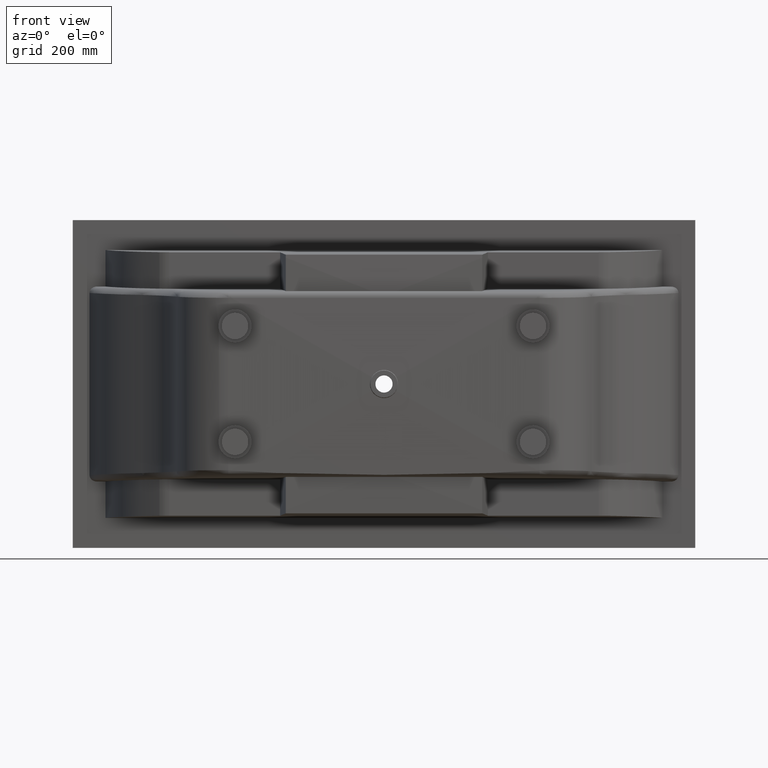
[diagram: clean part render]
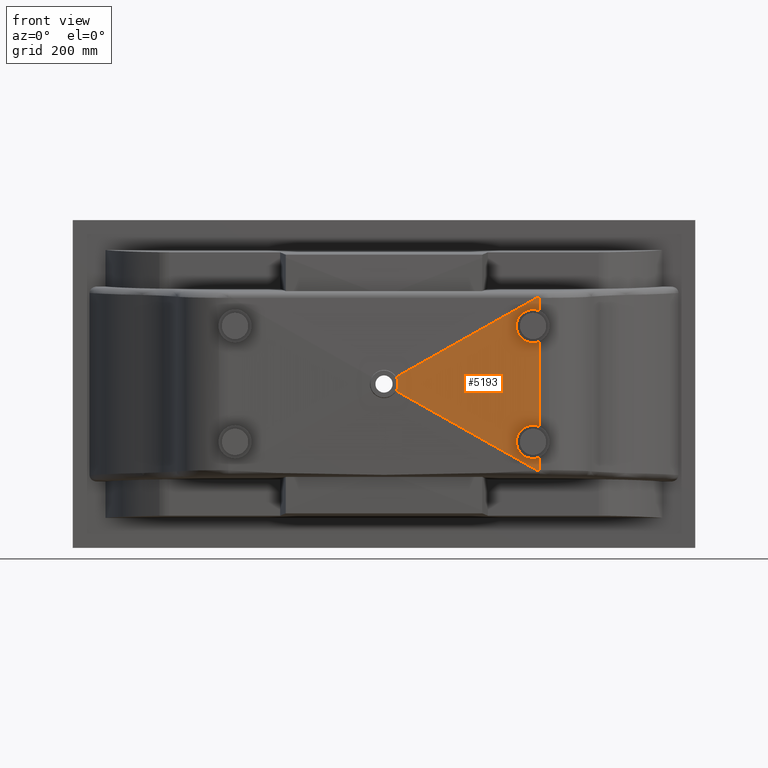
[diagram: same view with one face highlighted and labeled with its STEP entity id]
A machine part, front view. The second image highlights one B-rep face of the part: STEP entity #5193.
In plain terms, the highlighted planar face has unit normal (-0.0128, 0.9999, 0).
Its self-contained STEP definition (entity closure, byte-faithful):
#29 = DIRECTION ( 'NONE',  ( 0.9999184321440602900, 0.01276491615503080500, -0.0004312471673996882900 ) ) ;
#32 = CARTESIAN_POINT ( 'NONE',  ( 977.0130315571362900, -449.5287154368916700, -474.0170278177797600 ) ) ;
#95 = CARTESIAN_POINT ( 'NONE',  ( 977.0138779637989000, -449.5287046316997200, -474.0184361766754400 ) ) ;
#137 = ORIENTED_EDGE ( 'NONE', *, *, #2438, .F. ) ;
#142 = CARTESIAN_POINT ( 'NONE',  ( 1403.807144227659400, -444.0802799560289600, -718.5599078367428100 ) ) ;
#162 = LINE ( 'NONE', #4357, #7533 ) ;
#200 = CARTESIAN_POINT ( 'NONE',  ( 980.6723147460567100, -449.4820011834158300, -482.3757269487691700 ) ) ;
#232 = CARTESIAN_POINT ( 'NONE',  ( 980.6694421779250200, -449.4820378544986900, -507.6328653980065700 ) ) ;
#464 = CARTESIAN_POINT ( 'NONE',  ( 940.1914737601326800, -449.9987778768532400, -214.9999999999992900 ) ) ;
#577 = CARTESIAN_POINT ( 'NONE',  ( 1390.000000000003600, -444.2565413717011300, -269.9999999999996600 ) ) ;
#584 = ORIENTED_EDGE ( 'NONE', *, *, #2398, .F. ) ;
#594 = LINE ( 'NONE', #2330, #5819 ) ;
#609 = EDGE_CURVE ( 'NONE', #6668, #2856, #731, .T. ) ;
#649 = B_SPLINE_CURVE_WITH_KNOTS ( 'NONE', 3,
 ( #2143, #6331, #4989, #676 ),
 .UNSPECIFIED., .F., .F.,
 ( 4, 4 ),
 ( 4.002966042486721000E-016, 4.929498789295870000E-006 ),
 .UNSPECIFIED. ) ;
#676 = CARTESIAN_POINT ( 'NONE',  ( 977.0121850690509300, -449.5287262431224300, -515.9843804921629300 ) ) ;
#731 = B_SPLINE_CURVE_WITH_KNOTS ( 'NONE', 3,
 ( #6808, #32, #95, #5176 ),
 .UNSPECIFIED., .F., .F.,
 ( 4, 4 ),
 ( 6.955527313080393900E-016, 4.929499139149944700E-006 ),
 .UNSPECIFIED. ) ;
#797 = VERTEX_POINT ( 'NONE', #5029 ) ;
#830 = CARTESIAN_POINT ( 'NONE',  ( 1396.978673286256300, -444.1674519254935900, -719.9999999999997700 ) ) ;
#941 = VERTEX_POINT ( 'NONE', #5010 ) ;
#952 = CARTESIAN_POINT ( 'NONE',  ( 981.5772608385789200, -449.4704486801068700, -485.9199060902230400 ) ) ;
#988 = CARTESIAN_POINT ( 'NONE',  ( 978.7207351757771200, -449.5069149651639000, -512.7269066526168900 ) ) ;
#1081 = CARTESIAN_POINT ( 'NONE',  ( 1410.191473760132600, -443.9987778768530700, -624.2582861340545200 ) ) ;
#1084 = EDGE_CURVE ( 'NONE', #7676, #797, #2587, .T. ) ;
#1086 = CARTESIAN_POINT ( 'NONE',  ( 1390.000000000003600, -444.2565413717011300, -619.9999999999996600 ) ) ;
#1135 = FACE_OUTER_BOUND ( 'NONE', #7313, .T. ) ;
#1242 = VERTEX_POINT ( 'NONE', #5965 ) ;
#1360 = CARTESIAN_POINT ( 'NONE',  ( 1410.191473760132600, -443.9987778768530700, -365.7417138659451400 ) ) ;
#1632 = VERTEX_POINT ( 'NONE', #1081 ) ;
#1699 = CARTESIAN_POINT ( 'NONE',  ( 982.0791813502592000, -449.4640411842134400, -488.6394568156196100 ) ) ;
#1727 = CARTESIAN_POINT ( 'NONE',  ( 1396.978673286256300, -444.1674519254935900, -369.9999999999997700 ) ) ;
#1730 = CARTESIAN_POINT ( 'NONE',  ( 977.0147242888498300, -449.5286938275503400, -515.9801554157894500 ) ) ;
#1956 = DIRECTION ( 'NONE',  ( -0.01276491734200298900, 0.9999185251235481700, 0.0000000000000000000 ) ) ;
#2010 = CARTESIAN_POINT ( 'NONE',  ( 1390.000000000003600, -444.2565413717011300, -369.9999999999997700 ) ) ;
#2026 = CARTESIAN_POINT ( 'NONE',  ( 1403.807144227659400, -444.0802799560289600, -621.4400921632567400 ) ) ;
#2031 = ORIENTED_EDGE ( 'NONE', *, *, #8056, .F. ) ;
#2064 = VERTEX_POINT ( 'NONE', #4882 ) ;
#2078 = CARTESIAN_POINT ( 'NONE',  ( 1290.000000000003600, -445.5331371163819700, -369.9999999999997700 ) ) ;
#2143 = CARTESIAN_POINT ( 'NONE',  ( 977.0147242888498300, -449.5286938275503400, -515.9801554157894500 ) ) ;
#2162 = VECTOR ( 'NONE', #29, 1000.000000000000000 ) ;
#2181 = EDGE_CURVE ( 'NONE', #6372, #2064, #649, .T. ) ;
#2191 = CARTESIAN_POINT ( 'NONE',  ( 1390.000000000003600, -444.2565413717011300, -619.9999999999996600 ) ) ;
#2330 = CARTESIAN_POINT ( 'NONE',  ( 1410.191473760132600, -443.9987778768530700, -214.9999999999992900 ) ) ;
#2346 = DIRECTION ( 'NONE',  ( -0.8710262766823218000, -0.01111948438317878800, 0.4911105602570399200 ) ) ;
#2390 =( BOUNDED_CURVE ( )  B_SPLINE_CURVE ( 3, ( #3109, #1727, #3178, #8051 ),
 .UNSPECIFIED., .F., .F. ) 
 B_SPLINE_CURVE_WITH_KNOTS ( ( 4, 4 ),
 ( 1.570796326794896600, 1.986495301719889200 ),
 .UNSPECIFIED. ) 
 CURVE ( )  GEOMETRIC_REPRESENTATION_ITEM ( )  RATIONAL_B_SPLINE_CURVE ( ( 1.000000000000000000, 0.9856512989705598100, 0.9856512989705598100, 1.000000000000000000 ) ) 
 REPRESENTATION_ITEM ( '' )  );
#2398 = EDGE_CURVE ( 'NONE', #8837, #8527, #594, .T. ) ;
#2438 = EDGE_CURVE ( 'NONE', #1242, #941, #7493, .T. ) ;
#2439 = CARTESIAN_POINT ( 'NONE',  ( 982.5476038633122500, -449.4580613223447500, -493.1860806266298000 ) ) ;
#2453 =( BOUNDED_CURVE ( )  B_SPLINE_CURVE ( 3, ( #7067, #4952, #3604, #8463 ),
 .UNSPECIFIED., .F., .F. ) 
 B_SPLINE_CURVE_WITH_KNOTS ( ( 4, 4 ),
 ( 4.296690005459696600, 4.712388980384689700 ),
 .UNSPECIFIED. ) 
 CURVE ( )  GEOMETRIC_REPRESENTATION_ITEM ( )  RATIONAL_B_SPLINE_CURVE ( ( 1.000000000000000000, 0.9856512989705598100, 0.9856512989705598100, 1.000000000000000000 ) ) 
 REPRESENTATION_ITEM ( '' )  );
#2543 = CARTESIAN_POINT ( 'NONE',  ( 1290.000000000003600, -445.5331371163819700, -619.9999999999996600 ) ) ;
#2566 = CARTESIAN_POINT ( 'NONE',  ( 1290.000000000003600, -445.5331371163819700, -269.9999999999996600 ) ) ;
#2577 = CARTESIAN_POINT ( 'NONE',  ( 1390.000000000003600, -444.2565413717011300, -719.9999999999997700 ) ) ;
#2587 =( BOUNDED_CURVE ( )  B_SPLINE_CURVE ( 3, ( #8944, #2566, #2078, #2010 ),
 .UNSPECIFIED., .F., .T. ) 
 B_SPLINE_CURVE_WITH_KNOTS ( ( 4, 4 ),
 ( 4.712388980384689700, 7.853981633974482800 ),
 .UNSPECIFIED. ) 
 CURVE ( )  GEOMETRIC_REPRESENTATION_ITEM ( )  RATIONAL_B_SPLINE_CURVE ( ( 1.000000000000000000, 0.3333333333333333700, 0.3333333333333333700, 1.000000000000000000 ) ) 
 REPRESENTATION_ITEM ( '' )  );
#2654 = ORIENTED_EDGE ( 'NONE', *, *, #2181, .T. ) ;
#2710 = EDGE_CURVE ( 'NONE', #941, #7676, #2453, .T. ) ;
#2751 = LINE ( 'NONE', #4160, #6241 ) ;
#2856 = VERTEX_POINT ( 'NONE', #7169 ) ;
#2974 = ORIENTED_EDGE ( 'NONE', *, *, #3569, .T. ) ;
#3095 = CARTESIAN_POINT ( 'NONE',  ( 1410.191473760132600, -443.9987778768530700, -214.9999999999992900 ) ) ;
#3109 = CARTESIAN_POINT ( 'NONE',  ( 1390.000000000003600, -444.2565413717011300, -369.9999999999997700 ) ) ;
#3112 = CARTESIAN_POINT ( 'NONE',  ( 977.9251687719577100, -449.5170711320216100, -475.6263145994818200 ) ) ;
#3148 = CARTESIAN_POINT ( 'NONE',  ( 982.4303999556826700, -449.4595575424419800, -498.6484927543413600 ) ) ;
#3178 = CARTESIAN_POINT ( 'NONE',  ( 1403.807144227659400, -444.0802799560289600, -368.5599078367427500 ) ) ;
#3359 =( BOUNDED_CURVE ( )  B_SPLINE_CURVE ( 3, ( #1086, #2543, #6740, #2577 ),
 .UNSPECIFIED., .F., .T. ) 
 B_SPLINE_CURVE_WITH_KNOTS ( ( 4, 4 ),
 ( 4.712388980384689700, 7.853981633974482800 ),
 .UNSPECIFIED. ) 
 CURVE ( )  GEOMETRIC_REPRESENTATION_ITEM ( )  RATIONAL_B_SPLINE_CURVE ( ( 1.000000000000000000, 0.3333333333333333700, 0.3333333333333333700, 1.000000000000000000 ) ) 
 REPRESENTATION_ITEM ( '' )  );
#3458 = CARTESIAN_POINT ( 'NONE',  ( 1396.978673286256300, -444.1674519254935900, -619.9999999999996600 ) ) ;
#3569 = EDGE_CURVE ( 'NONE', #1242, #7809, #2751, .T. ) ;
#3604 = CARTESIAN_POINT ( 'NONE',  ( 1396.978673286256300, -444.1674519254935900, -269.9999999999996600 ) ) ;
#3737 = LINE ( 'NONE', #5828, #9081 ) ;
#3785 = CARTESIAN_POINT ( 'NONE',  ( 1390.000000000003600, -444.2565413717011300, -719.9999999999997700 ) ) ;
#3872 = CARTESIAN_POINT ( 'NONE',  ( 981.9270546008368700, -449.4659832278225600, -502.2963070903023800 ) ) ;
#3889 = VERTEX_POINT ( 'NONE', #7420 ) ;
#4137 = ORIENTED_EDGE ( 'NONE', *, *, #7336, .T. ) ;
#4160 = CARTESIAN_POINT ( 'NONE',  ( 66.08741110214350600, -461.1575531448277200, -235.4136357437909900 ) ) ;
#4294 = LINE ( 'NONE', #8532, #2162 ) ;
#4318 = EDGE_CURVE ( 'NONE', #4388, #8837, #5214, .T. ) ;
#4357 = CARTESIAN_POINT ( 'NONE',  ( 1059.871409813964400, -448.4709489059532100, -427.2971204495344800 ) ) ;
#4388 = VERTEX_POINT ( 'NONE', #8003 ) ;
#4560 = CARTESIAN_POINT ( 'NONE',  ( 980.0949691727092800, -449.4893715524377700, -480.6487959421073100 ) ) ;
#4588 = CARTESIAN_POINT ( 'NONE',  ( 981.3680769378819400, -449.4731191128822200, -504.9890902907974400 ) ) ;
#4864 = DIRECTION ( 'NONE',  ( -0.9999184321440602900, -0.01276491615503080500, -0.0004312471673996914900 ) ) ;
#4882 = CARTESIAN_POINT ( 'NONE',  ( 977.0121850690509300, -449.5287262431224300, -515.9843804921629300 ) ) ;
#4952 = CARTESIAN_POINT ( 'NONE',  ( 1403.807144227659400, -444.0802799560289600, -271.4400921632567400 ) ) ;
#4989 = CARTESIAN_POINT ( 'NONE',  ( 977.0130315570763700, -449.5287154368923000, -515.9829721823190300 ) ) ;
#5009 = EDGE_CURVE ( 'NONE', #2856, #6372, #7899, .T. ) ;
#5010 = CARTESIAN_POINT ( 'NONE',  ( 1410.191473760132600, -443.9987778768530700, -274.2582861340544600 ) ) ;
#5029 = CARTESIAN_POINT ( 'NONE',  ( 1390.000000000003600, -444.2565413717011300, -369.9999999999997700 ) ) ;
#5176 = CARTESIAN_POINT ( 'NONE',  ( 977.0147242890294600, -449.5286938275483000, -474.0198445845089700 ) ) ;
#5179 = CARTESIAN_POINT ( 'NONE',  ( 1410.191473760132600, -443.9987778768530700, -715.7417138659451400 ) ) ;
#5193 = ADVANCED_FACE ( 'NONE', ( #1135 ), #8240, .F. ) ;
#5214 =( BOUNDED_CURVE ( )  B_SPLINE_CURVE ( 3, ( #3785, #830, #142, #5179 ),
 .UNSPECIFIED., .F., .T. ) 
 B_SPLINE_CURVE_WITH_KNOTS ( ( 4, 4 ),
 ( 1.570796326794896600, 1.986495301719888800 ),
 .UNSPECIFIED. ) 
 CURVE ( )  GEOMETRIC_REPRESENTATION_ITEM ( )  RATIONAL_B_SPLINE_CURVE ( ( 1.000000000000000000, 0.9856512989705598100, 0.9856512989705598100, 1.000000000000000000 ) ) 
 REPRESENTATION_ITEM ( '' )  );
#5232 = CARTESIAN_POINT ( 'NONE',  ( 981.3718476961629400, -449.4730709755424400, -485.0263307935936200 ) ) ;
#5261 = CARTESIAN_POINT ( 'NONE',  ( 980.0929604163184200, -449.4893971961357100, -509.3565267271410400 ) ) ;
#5535 = VECTOR ( 'NONE', #8680, 1000.000000000000000 ) ;
#5608 = VECTOR ( 'NONE', #5899, 1000.000000000000000 ) ;
#5651 = ORIENTED_EDGE ( 'NONE', *, *, #609, .T. ) ;
#5748 =( BOUNDED_CURVE ( )  B_SPLINE_CURVE ( 3, ( #6941, #2026, #3458, #8340 ),
 .UNSPECIFIED., .F., .F. ) 
 B_SPLINE_CURVE_WITH_KNOTS ( ( 4, 4 ),
 ( 4.296690005459696600, 4.712388980384689700 ),
 .UNSPECIFIED. ) 
 CURVE ( )  GEOMETRIC_REPRESENTATION_ITEM ( )  RATIONAL_B_SPLINE_CURVE ( ( 1.000000000000000000, 0.9856512989705598100, 0.9856512989705598100, 1.000000000000000000 ) ) 
 REPRESENTATION_ITEM ( '' )  );
#5819 = VECTOR ( 'NONE', #5868, 1000.000000000000000 ) ;
#5828 = CARTESIAN_POINT ( 'NONE',  ( 820.3200962795302800, -451.5290507808609300, -427.6367134087114400 ) ) ;
#5868 = DIRECTION ( 'NONE',  ( -0.0000000000000000000, -0.0000000000000000000, -1.000000000000000000 ) ) ;
#5899 = DIRECTION ( 'NONE',  ( -0.0000000000000000000, -0.0000000000000000000, -1.000000000000000000 ) ) ;
#5907 = CARTESIAN_POINT ( 'NONE',  ( 981.9312729406000200, -449.4659293766767400, -487.7276028113928400 ) ) ;
#5940 = CARTESIAN_POINT ( 'NONE',  ( 977.9251678325758800, -449.5170711440138700, -514.3736870580373800 ) ) ;
#5965 = CARTESIAN_POINT ( 'NONE',  ( 1410.191473760132600, -443.9987778768530700, -234.8339473901432900 ) ) ;
#5986 = ORIENTED_EDGE ( 'NONE', *, *, #6615, .F. ) ;
#6082 = ORIENTED_EDGE ( 'NONE', *, *, #8298, .F. ) ;
#6160 = EDGE_CURVE ( 'NONE', #3889, #2064, #3737, .T. ) ;
#6241 = VECTOR ( 'NONE', #4864, 1000.000000000000000 ) ;
#6331 = CARTESIAN_POINT ( 'NONE',  ( 977.0138779636788500, -449.5287046317016000, -515.9815638235232900 ) ) ;
#6355 = CARTESIAN_POINT ( 'NONE',  ( 1410.191473760132600, -443.9987778768530700, -715.7417138659451400 ) ) ;
#6372 = VERTEX_POINT ( 'NONE', #7559 ) ;
#6417 = ORIENTED_EDGE ( 'NONE', *, *, #6831, .F. ) ;
#6474 = ORIENTED_EDGE ( 'NONE', *, *, #1084, .F. ) ;
#6587 = CARTESIAN_POINT ( 'NONE',  ( 977.0147242890294600, -449.5286938275483000, -474.0198445845089700 ) ) ;
#6615 = EDGE_CURVE ( 'NONE', #8490, #4388, #3359, .T. ) ;
#6617 = CARTESIAN_POINT ( 'NONE',  ( 982.4315070732335500, -449.4595434090265400, -491.3667529564302200 ) ) ;
#6668 = VERTEX_POINT ( 'NONE', #8895 ) ;
#6740 = CARTESIAN_POINT ( 'NONE',  ( 1290.000000000003600, -445.5331371163819700, -719.9999999999997700 ) ) ;
#6808 = CARTESIAN_POINT ( 'NONE',  ( 977.0121850690509300, -449.5287262431222600, -474.0156195078365600 ) ) ;
#6831 = EDGE_CURVE ( 'NONE', #797, #8779, #2390, .T. ) ;
#6869 = ORIENTED_EDGE ( 'NONE', *, *, #4318, .F. ) ;
#6873 = DIRECTION ( 'NONE',  ( -0.9999185251235480600, -0.01276491734200298700, 0.0000000000000000000 ) ) ;
#6914 = ORIENTED_EDGE ( 'NONE', *, *, #5009, .T. ) ;
#6941 = CARTESIAN_POINT ( 'NONE',  ( 1410.191473760132600, -443.9987778768530700, -624.2582861340545200 ) ) ;
#7067 = CARTESIAN_POINT ( 'NONE',  ( 1410.191473760132600, -443.9987778768530700, -274.2582861340544600 ) ) ;
#7119 = CARTESIAN_POINT ( 'NONE',  ( 1410.191473760132600, -443.9987778768531300, -755.1660526098554600 ) ) ;
#7131 = CARTESIAN_POINT ( 'NONE',  ( 1401.214321681604400, -444.1133798182810900, -234.8378190773535700 ) ) ;
#7169 = CARTESIAN_POINT ( 'NONE',  ( 977.0147242890294600, -449.5286938275483000, -474.0198445845089700 ) ) ;
#7313 = EDGE_LOOP ( 'NONE', ( #584, #6869, #5986, #6082, #8950, #6417, #6474, #8342, #137, #2974, #2031, #5651, #6914, #2654, #7491, #4137 ) ) ;
#7336 = EDGE_CURVE ( 'NONE', #3889, #8527, #4294, .T. ) ;
#7340 = CARTESIAN_POINT ( 'NONE',  ( 982.5470455916058700, -449.4580684492177100, -496.8269505704280400 ) ) ;
#7418 = LINE ( 'NONE', #3095, #5535 ) ;
#7420 = CARTESIAN_POINT ( 'NONE',  ( 1401.214321681612800, -444.1133798182809800, -755.1621809226451200 ) ) ;
#7491 = ORIENTED_EDGE ( 'NONE', *, *, #6160, .F. ) ;
#7493 = LINE ( 'NONE', #8020, #5608 ) ;
#7533 = VECTOR ( 'NONE', #9209, 1000.000000000000100 ) ;
#7559 = CARTESIAN_POINT ( 'NONE',  ( 977.0147242888498300, -449.5286938275503400, -515.9801554157894500 ) ) ;
#7676 = VERTEX_POINT ( 'NONE', #577 ) ;
#7809 = VERTEX_POINT ( 'NONE', #7131 ) ;
#7899 = B_SPLINE_CURVE_WITH_KNOTS ( 'NONE', 3,
 ( #6587, #3112, #8694, #4560, #200, #5232, #952, #5907, #1699, #6617, #2439, #7340, #3148, #8029, #3872, #8733, #4588, #232, #5261, #988, #5940, #1730 ),
 .UNSPECIFIED., .F., .F.,
 ( 4, 2, 2, 2, 2, 2, 2, 2, 2, 2, 4 ),
 ( 2.001483021243360500E-016, 0.005461081866634024500, 0.01092216373326784800, 0.01365270466658480300, 0.01638324559990176100, 0.02184432746653587600, 0.02730540933316998700, 0.03003595026648699100, 0.03276649119980398800, 0.03822757306643839000, 0.04368865493307279300 ),
 .UNSPECIFIED. ) ;
#8003 = CARTESIAN_POINT ( 'NONE',  ( 1390.000000000003600, -444.2565413717011300, -719.9999999999997700 ) ) ;
#8020 = CARTESIAN_POINT ( 'NONE',  ( 1410.191473760132600, -443.9987778768530700, -214.9999999999992900 ) ) ;
#8029 = CARTESIAN_POINT ( 'NONE',  ( 982.0759047856670300, -449.4640830126973600, -501.3825142034088500 ) ) ;
#8051 = CARTESIAN_POINT ( 'NONE',  ( 1410.191473760132600, -443.9987778768530700, -365.7417138659451400 ) ) ;
#8056 = EDGE_CURVE ( 'NONE', #6668, #7809, #162, .T. ) ;
#8220 = AXIS2_PLACEMENT_3D ( 'NONE', #464, #1956, #6873 ) ;
#8240 = PLANE ( 'NONE',  #8220 ) ;
#8298 = EDGE_CURVE ( 'NONE', #1632, #8490, #5748, .T. ) ;
#8340 = CARTESIAN_POINT ( 'NONE',  ( 1390.000000000003600, -444.2565413717011300, -619.9999999999996600 ) ) ;
#8342 = ORIENTED_EDGE ( 'NONE', *, *, #2710, .F. ) ;
#8463 = CARTESIAN_POINT ( 'NONE',  ( 1390.000000000003600, -444.2565413717011300, -269.9999999999996600 ) ) ;
#8490 = VERTEX_POINT ( 'NONE', #2191 ) ;
#8527 = VERTEX_POINT ( 'NONE', #7119 ) ;
#8532 = CARTESIAN_POINT ( 'NONE',  ( 66.08741110214350600, -461.1575531448277200, -754.5863642562077300 ) ) ;
#8680 = DIRECTION ( 'NONE',  ( -0.0000000000000000000, -0.0000000000000000000, -1.000000000000000000 ) ) ;
#8694 = CARTESIAN_POINT ( 'NONE',  ( 978.7213113789566700, -449.5069076093793100, -477.2741204367308700 ) ) ;
#8733 = CARTESIAN_POINT ( 'NONE',  ( 981.5732571996848000, -449.4704997903903600, -504.0981122169571300 ) ) ;
#8779 = VERTEX_POINT ( 'NONE', #1360 ) ;
#8837 = VERTEX_POINT ( 'NONE', #6355 ) ;
#8895 = CARTESIAN_POINT ( 'NONE',  ( 977.0121850690509300, -449.5287262431222600, -474.0156195078365600 ) ) ;
#8944 = CARTESIAN_POINT ( 'NONE',  ( 1390.000000000003600, -444.2565413717011300, -269.9999999999996600 ) ) ;
#8950 = ORIENTED_EDGE ( 'NONE', *, *, #9098, .F. ) ;
#9081 = VECTOR ( 'NONE', #2346, 1000.000000000000200 ) ;
#9098 = EDGE_CURVE ( 'NONE', #8779, #1632, #7418, .T. ) ;
#9209 = DIRECTION ( 'NONE',  ( 0.8710262766823178000, 0.01111948438317874100, 0.4911105602570469700 ) ) ;